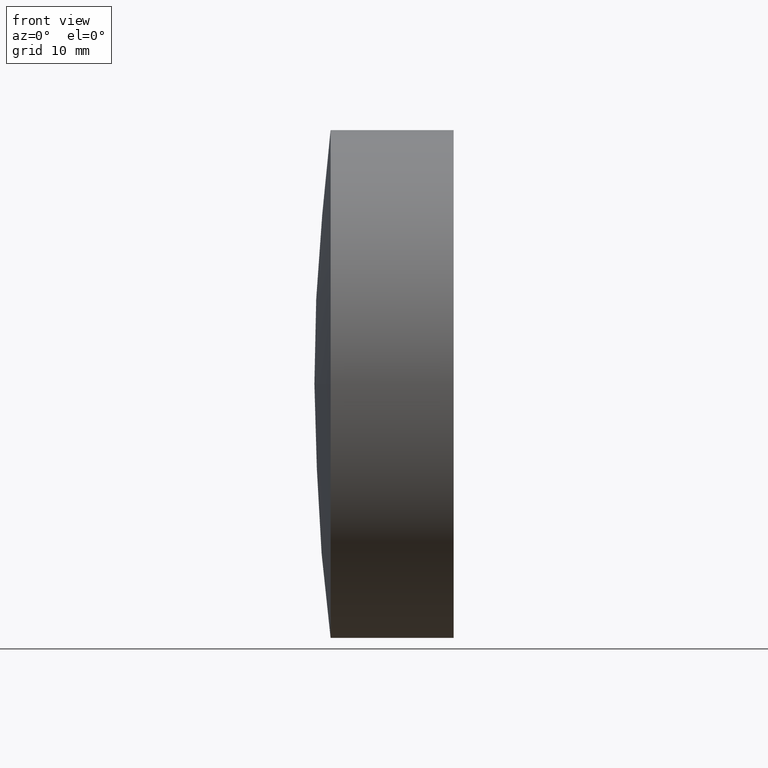
[diagram: clean part render]
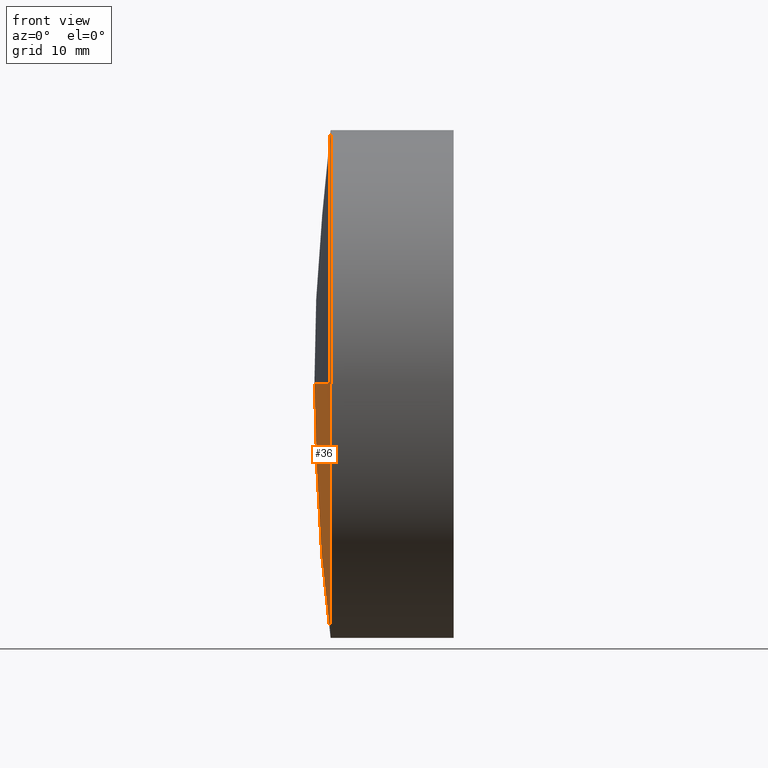
[diagram: same view with one face highlighted and labeled with its STEP entity id]
A machine part, front view. The second image highlights one B-rep face of the part: STEP entity #36.
In plain terms, the highlighted spherical surface has radius 200 mm.
Its self-contained STEP definition (entity closure, byte-faithful):
#28 = EDGE_CURVE ( 'NONE', #29, #40, #124, .T. ) ;
#29 = VERTEX_POINT ( 'NONE', #177 ) ;
#31 = EDGE_CURVE ( 'NONE', #29, #32, #176, .T. ) ;
#32 = VERTEX_POINT ( 'NONE', #171 ) ;
#36 = ADVANCED_FACE ( 'NONE', ( #164 ), #204, .T. ) ;
#37 = EDGE_LOOP ( 'NONE', ( #38, #91, #92, #93 ) ) ;
#38 = ORIENTED_EDGE ( 'NONE', *, *, #31, .F. ) ;
#40 = VERTEX_POINT ( 'NONE', #195 ) ;
#50 = VERTEX_POINT ( 'NONE', #233 ) ;
#52 = EDGE_CURVE ( 'NONE', #50, #40, #231, .T. ) ;
#91 = ORIENTED_EDGE ( 'NONE', *, *, #28, .T. ) ;
#92 = ORIENTED_EDGE ( 'NONE', *, *, #52, .F. ) ;
#93 = ORIENTED_EDGE ( 'NONE', *, *, #94, .F. ) ;
#94 = EDGE_CURVE ( 'NONE', #32, #50, #277, .T. ) ;
#124 = CIRCLE ( 'NONE', #181, 7.874015748031496300 ) ;
#164 = FACE_OUTER_BOUND ( 'NONE', #37, .T. ) ;
#171 = CARTESIAN_POINT ( 'NONE',  ( -3.462008789174868500, 0.3589329228707141600, 0.8722530675037538600 ) ) ;
#172 = DIRECTION ( 'NONE',  ( 0.0000000000000000000, -1.000000000000000000, 1.214306433183764700E-016 ) ) ;
#173 = DIRECTION ( 'NONE',  ( 0.0000000000000000000, 1.224606353822377300E-016, 1.000000000000000000 ) ) ;
#174 = CARTESIAN_POINT ( 'NONE',  ( 4.348248825030185400, 1.358932922870714100, 0.8722530675037537500 ) ) ;
#175 = AXIS2_PLACEMENT_3D ( 'NONE', #174, #173, #172 ) ;
#176 = CIRCLE ( 'NONE', #175, 7.874015748031496300 ) ;
#177 = CARTESIAN_POINT ( 'NONE',  ( -3.525766923001311800, 1.358932922870714800, 0.8722530675037537500 ) ) ;
#178 = DIRECTION ( 'NONE',  ( -1.000000000000000000, 0.0000000000000000000, 0.0000000000000000000 ) ) ;
#179 = DIRECTION ( 'NONE',  ( 0.0000000000000000000, 0.0000000000000000000, -1.000000000000000000 ) ) ;
#180 = CARTESIAN_POINT ( 'NONE',  ( 4.348248825030185400, 1.358932922870714100, 0.8722530675037537500 ) ) ;
#181 = AXIS2_PLACEMENT_3D ( 'NONE', #180, #179, #178 ) ;
#195 = CARTESIAN_POINT ( 'NONE',  ( -3.462008789174867700, 2.358932922870714300, 0.8722530675037537500 ) ) ;
#201 = DIRECTION ( 'NONE',  ( 0.0000000000000000000, 1.000000000000000000, 0.0000000000000000000 ) ) ;
#202 = DIRECTION ( 'NONE',  ( 0.0000000000000000000, 0.0000000000000000000, 1.000000000000000000 ) ) ;
#203 = AXIS2_PLACEMENT_3D ( 'NONE', #205, #202, #201 ) ;
#204 = SPHERICAL_SURFACE ( 'NONE', #203, 7.874015748031496300 ) ;
#205 = CARTESIAN_POINT ( 'NONE',  ( 4.348248825030185400, 1.358932922870714100, 0.8722530675037537500 ) ) ;
#227 = DIRECTION ( 'NONE',  ( 0.0000000000000000000, 0.0000000000000000000, -1.000000000000000000 ) ) ;
#228 = DIRECTION ( 'NONE',  ( 1.000000000000000000, 0.0000000000000000000, 0.0000000000000000000 ) ) ;
#229 = CARTESIAN_POINT ( 'NONE',  ( -3.462008789174868500, 1.358932922870714100, 0.8722530675037537500 ) ) ;
#230 = AXIS2_PLACEMENT_3D ( 'NONE', #229, #228, #227 ) ;
#231 = CIRCLE ( 'NONE', #230, 1.000000000000001300 ) ;
#233 = CARTESIAN_POINT ( 'NONE',  ( -3.462008789174868500, 1.358932922870714100, -0.1277469324962476600 ) ) ;
#273 = DIRECTION ( 'NONE',  ( 0.0000000000000000000, 0.0000000000000000000, -1.000000000000000000 ) ) ;
#274 = DIRECTION ( 'NONE',  ( 1.000000000000000000, 0.0000000000000000000, 0.0000000000000000000 ) ) ;
#275 = CARTESIAN_POINT ( 'NONE',  ( -3.462008789174868500, 1.358932922870714100, 0.8722530675037537500 ) ) ;
#276 = AXIS2_PLACEMENT_3D ( 'NONE', #275, #274, #273 ) ;
#277 = CIRCLE ( 'NONE', #276, 1.000000000000001300 ) ;